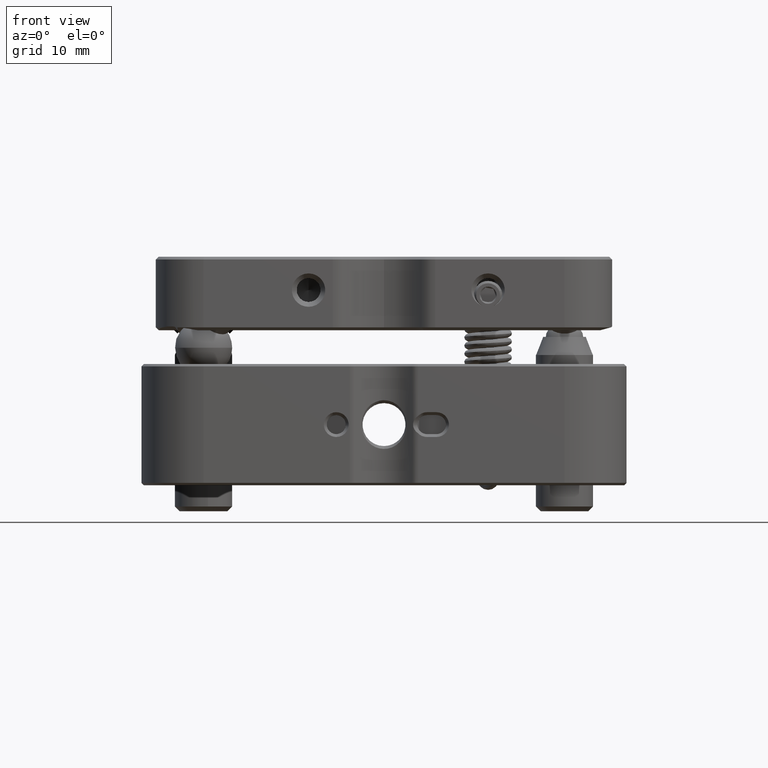
[diagram: clean part render]
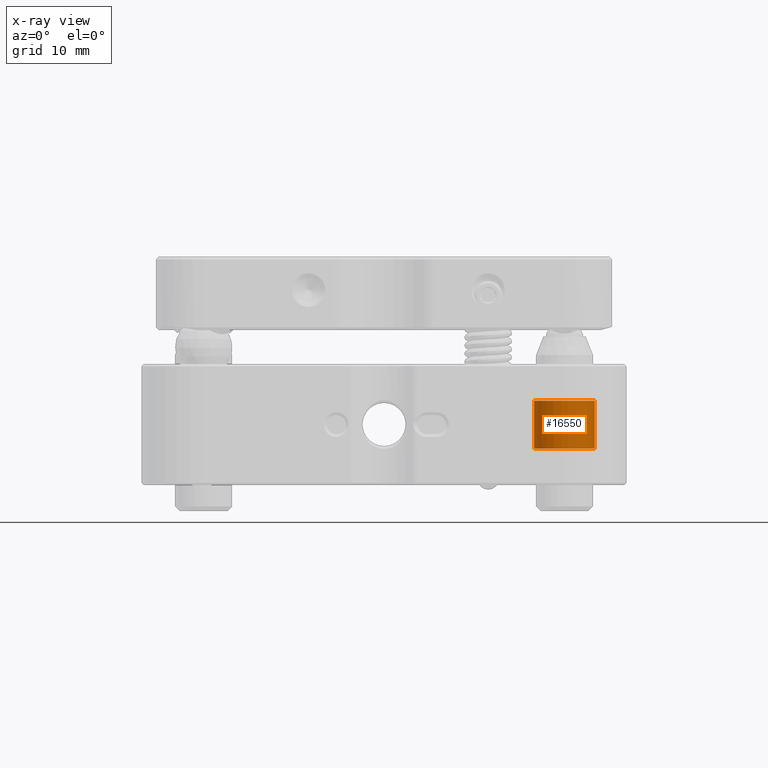
[diagram: x-ray — body ghosted, one internal face saturated and labeled with its STEP entity id]
A machine part, front view, then the same camera in x-ray: the body is ghosted and one INTERNAL B-rep face — a face not visible from any outside direction — is saturated and labeled: STEP entity #16550.
In plain terms, the highlighted cylindrical surface (edge-blend (fillet) strip) has radius 3.175 mm, axis along (0, 0, 1).
Its self-contained STEP definition (entity closure, byte-faithful):
#819 = CARTESIAN_POINT ( 'NONE',  ( 18.89999999999999858, -18.89999999999999503, -2.500000000000000000 ) ) ;
#1181 = AXIS2_PLACEMENT_3D ( 'NONE', #21593, #25992, #21306 ) ;
#2487 = EDGE_CURVE ( 'NONE', #17658, #13434, #10209, .T. ) ;
#2499 = DIRECTION ( 'NONE',  ( 0.000000000000000000, 1.000000000000000000, 0.000000000000000000 ) ) ;
#4568 = EDGE_CURVE ( 'NONE', #18080, #13434, #11309, .T. ) ;
#5032 = CARTESIAN_POINT ( 'NONE',  ( 22.07499999999999218, -18.89999999999999503, -2.500000000000000000 ) ) ;
#5150 = VECTOR ( 'NONE', #25946, 1000.000000000000000 ) ;
#8698 = AXIS2_PLACEMENT_3D ( 'NONE', #17404, #19240, #26054 ) ;
#8733 = FACE_OUTER_BOUND ( 'NONE', #12752, .T. ) ;
#9463 = DIRECTION ( 'NONE',  ( -0.000000000000000000, -0.000000000000000000, -1.000000000000000000 ) ) ;
#9609 = VECTOR ( 'NONE', #24369, 1000.000000000000000 ) ;
#9849 = CARTESIAN_POINT ( 'NONE',  ( 15.72500000000000675, -18.89999999999999503, 2.500000000000000000 ) ) ;
#10209 = CIRCLE ( 'NONE', #1181, 3.174999999999993605 ) ;
#11309 = LINE ( 'NONE', #21948, #9609 ) ;
#11998 = CIRCLE ( 'NONE', #27836, 3.174999999999993605 ) ;
#12367 = EDGE_CURVE ( 'NONE', #13081, #18080, #11998, .T. ) ;
#12752 = EDGE_LOOP ( 'NONE', ( #18178, #14265, #23118, #22868 ) ) ;
#13081 = VERTEX_POINT ( 'NONE', #5032 ) ;
#13434 = VERTEX_POINT ( 'NONE', #9849 ) ;
#14265 = ORIENTED_EDGE ( 'NONE', *, *, #4568, .T. ) ;
#16550 = ADVANCED_FACE ( 'NONE', ( #8733 ), #25634, .F. ) ;
#17404 = CARTESIAN_POINT ( 'NONE',  ( 18.89999999999999858, -18.89999999999999503, -2.500000000000000000 ) ) ;
#17437 = LINE ( 'NONE', #24647, #5150 ) ;
#17658 = VERTEX_POINT ( 'NONE', #26699 ) ;
#18080 = VERTEX_POINT ( 'NONE', #20235 ) ;
#18121 = EDGE_CURVE ( 'NONE', #13081, #17658, #17437, .T. ) ;
#18178 = ORIENTED_EDGE ( 'NONE', *, *, #12367, .T. ) ;
#19240 = DIRECTION ( 'NONE',  ( -0.000000000000000000, -0.000000000000000000, 1.000000000000000000 ) ) ;
#20235 = CARTESIAN_POINT ( 'NONE',  ( 15.72500000000000675, -18.89999999999999503, -2.500000000000000000 ) ) ;
#21306 = DIRECTION ( 'NONE',  ( 0.000000000000000000, 1.000000000000000000, 0.000000000000000000 ) ) ;
#21593 = CARTESIAN_POINT ( 'NONE',  ( 18.89999999999999858, -18.89999999999999503, 2.500000000000000000 ) ) ;
#21948 = CARTESIAN_POINT ( 'NONE',  ( 15.72500000000000675, -18.89999999999999503, -2.500000000000000000 ) ) ;
#22868 = ORIENTED_EDGE ( 'NONE', *, *, #18121, .F. ) ;
#23118 = ORIENTED_EDGE ( 'NONE', *, *, #2487, .F. ) ;
#24369 = DIRECTION ( 'NONE',  ( -0.000000000000000000, -0.000000000000000000, 1.000000000000000000 ) ) ;
#24647 = CARTESIAN_POINT ( 'NONE',  ( 22.07499999999999218, -18.89999999999999503, -2.500000000000000000 ) ) ;
#25634 = CYLINDRICAL_SURFACE ( 'NONE', #8698, 3.174999999999993605 ) ;
#25946 = DIRECTION ( 'NONE',  ( -0.000000000000000000, -0.000000000000000000, 1.000000000000000000 ) ) ;
#25992 = DIRECTION ( 'NONE',  ( -0.000000000000000000, -0.000000000000000000, -1.000000000000000000 ) ) ;
#26054 = DIRECTION ( 'NONE',  ( 1.000000000000000000, 0.000000000000000000, 0.000000000000000000 ) ) ;
#26699 = CARTESIAN_POINT ( 'NONE',  ( 22.07499999999999218, -18.89999999999999503, 2.500000000000000000 ) ) ;
#27836 = AXIS2_PLACEMENT_3D ( 'NONE', #819, #9463, #2499 ) ;